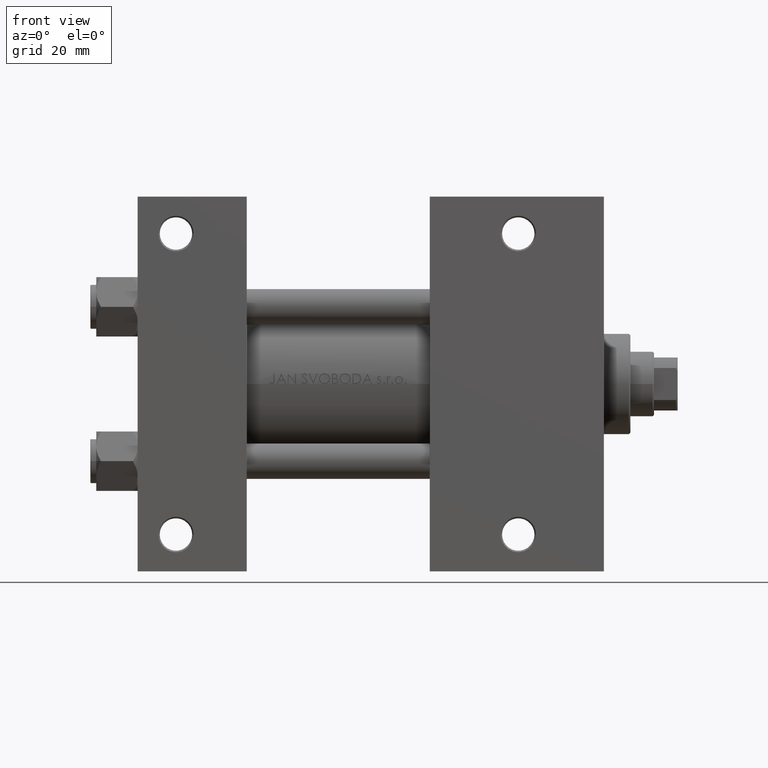
[diagram: clean part render]
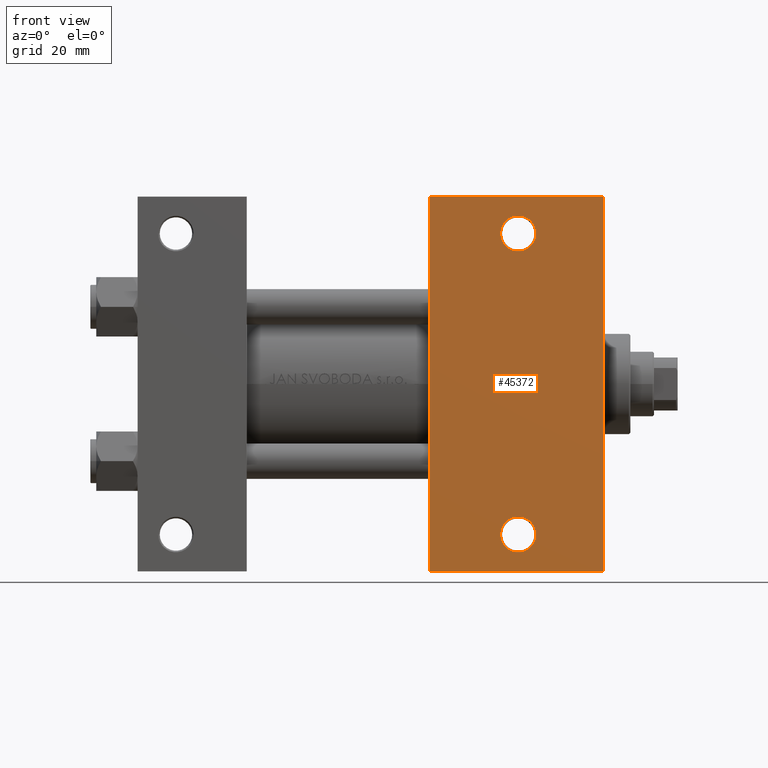
[diagram: same view with one face highlighted and labeled with its STEP entity id]
A machine part, front view. The second image highlights one B-rep face of the part: STEP entity #45372.
In plain terms, the highlighted planar face has unit normal (0, -1, 0).
Its self-contained STEP definition (entity closure, byte-faithful):
#124 = VECTOR ( 'NONE', #39046, 1000.000000000000000 ) ;
#1235 = DIRECTION ( 'NONE',  ( 1.000000000000000000, 0.000000000000000000, 0.000000000000000000 ) ) ;
#1325 = EDGE_CURVE ( 'NONE', #12974, #25289, #36680, .T. ) ;
#2325 = CARTESIAN_POINT ( 'NONE',  ( 98.99999999999998579, -63.50000000000000000, -37.50000000000000000 ) ) ;
#2630 = AXIS2_PLACEMENT_3D ( 'NONE', #13936, #14420, #17430 ) ;
#3377 = DIRECTION ( 'NONE',  ( -0.000000000000000000, -0.000000000000000000, 1.000000000000000000 ) ) ;
#4063 = ORIENTED_EDGE ( 'NONE', *, *, #32391, .T. ) ;
#4651 = LINE ( 'NONE', #38555, #124 ) ;
#4884 = EDGE_LOOP ( 'NONE', ( #32808, #4063, #26996, #39189 ) ) ;
#5220 = AXIS2_PLACEMENT_3D ( 'NONE', #37532, #3377, #22810 ) ;
#6457 = FACE_BOUND ( 'NONE', #43265, .T. ) ;
#7572 = EDGE_CURVE ( 'NONE', #21541, #15804, #42022, .T. ) ;
#9566 = CARTESIAN_POINT ( 'NONE',  ( 134.9994999999999550, -51.00000000000000000, -37.50000000000000000 ) ) ;
#10134 = DIRECTION ( 'NONE',  ( 0.000000000000000000, -1.000000000000000000, 0.000000000000000000 ) ) ;
#10375 = CARTESIAN_POINT ( 'NONE',  ( 99.00000000000000000, 37.50000000000000000, -37.50000000000000000 ) ) ;
#10818 = CARTESIAN_POINT ( 'NONE',  ( 128.9999999999999716, 50.99999999999999289, -37.50000000000000000 ) ) ;
#12011 = AXIS2_PLACEMENT_3D ( 'NONE', #46062, #15668, #30866 ) ;
#12389 = VERTEX_POINT ( 'NONE', #14430 ) ;
#12974 = VERTEX_POINT ( 'NONE', #28719 ) ;
#13936 = CARTESIAN_POINT ( 'NONE',  ( 128.9999999999999716, -51.00000000000000000, -37.50000000000000000 ) ) ;
#14179 = DIRECTION ( 'NONE',  ( -1.000000000000000000, 0.000000000000000000, -0.000000000000000000 ) ) ;
#14420 = DIRECTION ( 'NONE',  ( -0.000000000000000000, -0.000000000000000000, 1.000000000000000000 ) ) ;
#14425 = PLANE ( 'NONE',  #19401 ) ;
#14430 = CARTESIAN_POINT ( 'NONE',  ( 99.00000000000000000, 63.50000000000000000, -37.50000000000000000 ) ) ;
#15548 = ORIENTED_EDGE ( 'NONE', *, *, #49183, .T. ) ;
#15668 = DIRECTION ( 'NONE',  ( -0.000000000000000000, -0.000000000000000000, 1.000000000000000000 ) ) ;
#15804 = VERTEX_POINT ( 'NONE', #32347 ) ;
#17430 = DIRECTION ( 'NONE',  ( -1.000000000000000000, 0.000000000000000000, 0.000000000000000000 ) ) ;
#18850 = CARTESIAN_POINT ( 'NONE',  ( 158.0000000000000000, 37.50000000000000000, -37.50000000000000000 ) ) ;
#19401 = AXIS2_PLACEMENT_3D ( 'NONE', #33119, #48311, #14179 ) ;
#21541 = VERTEX_POINT ( 'NONE', #28178 ) ;
#21653 = FACE_OUTER_BOUND ( 'NONE', #4884, .T. ) ;
#21833 = LINE ( 'NONE', #10375, #37687 ) ;
#22810 = DIRECTION ( 'NONE',  ( -1.000000000000000000, 0.000000000000000000, 0.000000000000000000 ) ) ;
#23216 = VERTEX_POINT ( 'NONE', #2325 ) ;
#23407 = VECTOR ( 'NONE', #1235, 1000.000000000000000 ) ;
#23659 = CARTESIAN_POINT ( 'NONE',  ( 99.00000000000000000, 63.50000000000000000, -37.50000000000000000 ) ) ;
#24906 = CIRCLE ( 'NONE', #2630, 5.999499999999990507 ) ;
#25289 = VERTEX_POINT ( 'NONE', #40490 ) ;
#26773 = EDGE_LOOP ( 'NONE', ( #38796, #33751 ) ) ;
#26996 = ORIENTED_EDGE ( 'NONE', *, *, #7572, .T. ) ;
#28178 = CARTESIAN_POINT ( 'NONE',  ( 158.0000000000000000, 63.50000000000000000, -37.50000000000000000 ) ) ;
#28314 = EDGE_CURVE ( 'NONE', #44229, #30999, #24906, .T. ) ;
#28719 = CARTESIAN_POINT ( 'NONE',  ( 134.9994999999999550, 50.99999999999999289, -37.50000000000000000 ) ) ;
#28965 = AXIS2_PLACEMENT_3D ( 'NONE', #10818, #45190, #49167 ) ;
#29496 = ORIENTED_EDGE ( 'NONE', *, *, #28314, .T. ) ;
#29864 = CARTESIAN_POINT ( 'NONE',  ( 123.0004999999999882, -51.00000000000000000, -37.50000000000000000 ) ) ;
#30866 = DIRECTION ( 'NONE',  ( -1.000000000000000000, 0.000000000000000000, 0.000000000000000000 ) ) ;
#30999 = VERTEX_POINT ( 'NONE', #9566 ) ;
#32347 = CARTESIAN_POINT ( 'NONE',  ( 157.9999999999999716, -63.50000000000002842, -37.50000000000000000 ) ) ;
#32391 = EDGE_CURVE ( 'NONE', #12389, #21541, #34882, .T. ) ;
#32808 = ORIENTED_EDGE ( 'NONE', *, *, #44463, .F. ) ;
#33119 = CARTESIAN_POINT ( 'NONE',  ( 158.0000000000000000, 37.50000000000000000, -37.50000000000000000 ) ) ;
#33751 = ORIENTED_EDGE ( 'NONE', *, *, #1325, .T. ) ;
#34882 = LINE ( 'NONE', #23659, #23407 ) ;
#35189 = EDGE_CURVE ( 'NONE', #15804, #23216, #4651, .T. ) ;
#36680 = CIRCLE ( 'NONE', #12011, 5.999499999999990507 ) ;
#37532 = CARTESIAN_POINT ( 'NONE',  ( 128.9999999999999716, -51.00000000000000000, -37.50000000000000000 ) ) ;
#37687 = VECTOR ( 'NONE', #10134, 1000.000000000000000 ) ;
#37882 = VECTOR ( 'NONE', #48998, 1000.000000000000000 ) ;
#38555 = CARTESIAN_POINT ( 'NONE',  ( 98.99999999999998579, -63.50000000000000000, -37.50000000000000000 ) ) ;
#38796 = ORIENTED_EDGE ( 'NONE', *, *, #44937, .T. ) ;
#39046 = DIRECTION ( 'NONE',  ( -1.000000000000000000, 4.704334850106596780E-16, -0.000000000000000000 ) ) ;
#39189 = ORIENTED_EDGE ( 'NONE', *, *, #35189, .T. ) ;
#40270 = CIRCLE ( 'NONE', #5220, 5.999499999999990507 ) ;
#40490 = CARTESIAN_POINT ( 'NONE',  ( 123.0004999999999882, 50.99999999999999289, -37.50000000000000000 ) ) ;
#42022 = LINE ( 'NONE', #18850, #37882 ) ;
#43265 = EDGE_LOOP ( 'NONE', ( #29496, #15548 ) ) ;
#44229 = VERTEX_POINT ( 'NONE', #29864 ) ;
#44463 = EDGE_CURVE ( 'NONE', #12389, #23216, #21833, .T. ) ;
#44937 = EDGE_CURVE ( 'NONE', #25289, #12974, #48868, .T. ) ;
#45190 = DIRECTION ( 'NONE',  ( -0.000000000000000000, -0.000000000000000000, 1.000000000000000000 ) ) ;
#45372 = ADVANCED_FACE ( 'NONE', ( #49044, #6457, #21653 ), #14425, .T. ) ;
#46062 = CARTESIAN_POINT ( 'NONE',  ( 128.9999999999999716, 50.99999999999999289, -37.50000000000000000 ) ) ;
#48311 = DIRECTION ( 'NONE',  ( 0.000000000000000000, 0.000000000000000000, -1.000000000000000000 ) ) ;
#48868 = CIRCLE ( 'NONE', #28965, 5.999499999999990507 ) ;
#48998 = DIRECTION ( 'NONE',  ( 0.000000000000000000, -1.000000000000000000, 0.000000000000000000 ) ) ;
#49044 = FACE_BOUND ( 'NONE', #26773, .T. ) ;
#49167 = DIRECTION ( 'NONE',  ( -1.000000000000000000, 0.000000000000000000, 0.000000000000000000 ) ) ;
#49183 = EDGE_CURVE ( 'NONE', #30999, #44229, #40270, .T. ) ;